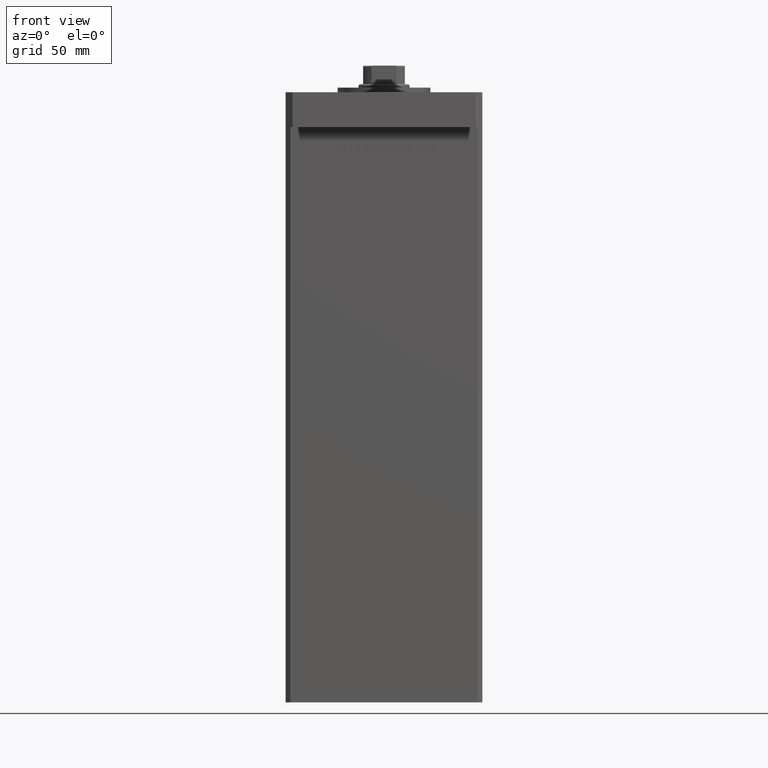
[diagram: clean part render]
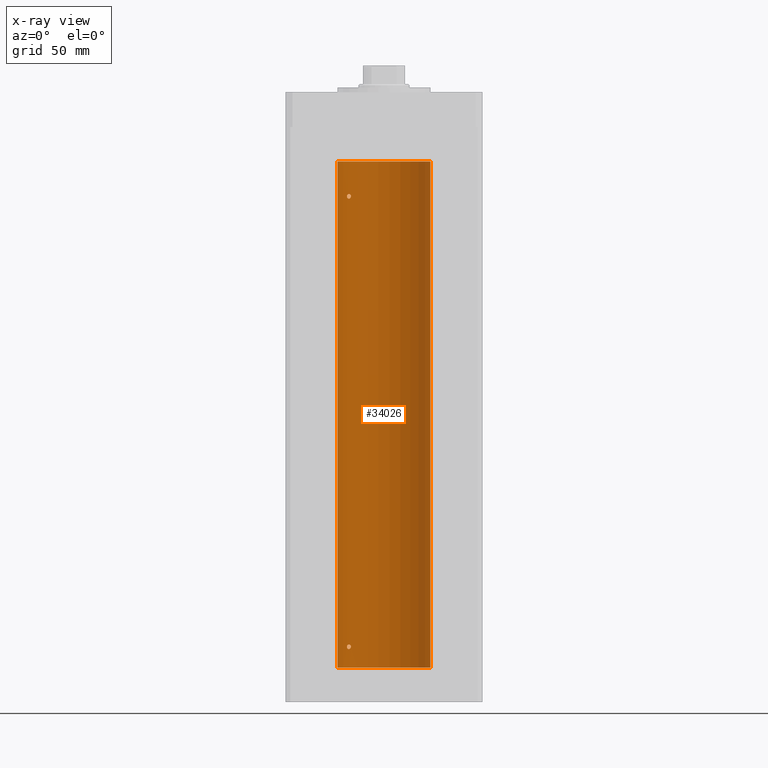
[diagram: x-ray — body ghosted, one internal face saturated and labeled with its STEP entity id]
A machine part, front view, then the same camera in x-ray: the body is ghosted and one INTERNAL B-rep face — a face not visible from any outside direction — is saturated and labeled: STEP entity #34026.
In plain terms, the highlighted cylindrical surface (partial cylindrical patch) has radius 20 mm, axis along (-0, -0, -1).
Its self-contained STEP definition (entity closure, byte-faithful):
#164 = CARTESIAN_POINT ( 'NONE',  ( -15.99999999999999645, 12.00000000000000533, 9.000000000000014211 ) ) ;
#1942 = CARTESIAN_POINT ( 'NONE',  ( -14.40763032799402055, 13.87162499441319063, 203.9952174752552878 ) ) ;
#2778 = CARTESIAN_POINT ( 'NONE',  ( -14.51590294503182932, 13.75881262167379404, 202.8367812074223480 ) ) ;
#3043 = CARTESIAN_POINT ( 'NONE',  ( -14.78531327857342959, 13.46907986586309924, 202.6090990069115207 ) ) ;
#3106 = EDGE_CURVE ( 'NONE', #18016, #44251, #45439, .T. ) ;
#3334 = ORIENTED_EDGE ( 'NONE', *, *, #38537, .F. ) ;
#3426 = CARTESIAN_POINT ( 'NONE',  ( -16.00000000000000355, 12.00000000000000888, 9.154240719993506303 ) ) ;
#3431 = B_SPLINE_CURVE_WITH_KNOTS ( 'NONE', 3,
 ( #22552, #10631, #39087, #1942, #18489, #27152, #35036, #30166, #36614, #15758, #31765, #28478, #52863, #6828, #52346, #3550, #40682, #44492, #7358, #48817 ),
 .UNSPECIFIED., .F., .F.,
 ( 4, 2, 2, 2, 2, 2, 2, 2, 2, 4 ),
 ( 0.003644921977557289642, 0.004100339128177169119, 0.004328047703487108641, 0.004555756278797049030, 0.005011173429416889910, 0.005466590580036730790, 0.005922007730656571670, 0.006377424881276412549, 0.006832842031896252562, 0.007288259182516093442 ),
 .UNSPECIFIED. ) ;
#3550 = CARTESIAN_POINT ( 'NONE',  ( -15.80861854366320074, 12.25167421322532668, 204.1760529919016847 ) ) ;
#3591 = CARTESIAN_POINT ( 'NONE',  ( -14.69070843596623099, 13.57200975233014972, 8.170264738076793876 ) ) ;
#3866 = DIRECTION ( 'NONE',  ( -0.000000000000000000, 0.000000000000000000, 1.000000000000000000 ) ) ;
#4324 = CARTESIAN_POINT ( 'NONE',  ( -14.28285685708537756, 14.00000000000032863, 8.999999999999864997 ) ) ;
#5059 = ORIENTED_EDGE ( 'NONE', *, *, #3106, .F. ) ;
#6814 = DIRECTION ( 'NONE',  ( -0.000000000000000000, 0.000000000000000000, 1.000000000000000000 ) ) ;
#6828 = CARTESIAN_POINT ( 'NONE',  ( -15.56338254739985949, 12.56194079578775025, 204.4068150496692624 ) ) ;
#7128 = CARTESIAN_POINT ( 'NONE',  ( -16.00000000000000355, 12.00000000000000711, 8.845692188641420373 ) ) ;
#7358 = CARTESIAN_POINT ( 'NONE',  ( -15.99999999999999289, 12.00000000000001243, 203.6542407199934814 ) ) ;
#7372 = FACE_BOUND ( 'NONE', #48345, .T. ) ;
#8215 = AXIS2_PLACEMENT_3D ( 'NONE', #52062, #6814, #15477 ) ;
#8571 = CARTESIAN_POINT ( 'NONE',  ( -15.37869370082498044, 12.78737709343839057, 9.984378433483328763 ) ) ;
#10631 = CARTESIAN_POINT ( 'NONE',  ( -14.28285685708573105, 14.00000000000002665, 203.6525126096658482 ) ) ;
#10925 = CARTESIAN_POINT ( 'NONE',  ( -14.28285685708538111, 14.00000000000032685, 203.4999999999998863 ) ) ;
#11198 = CARTESIAN_POINT ( 'NONE',  ( -15.99999999999999645, 12.00000000000000533, 9.000000000000014211 ) ) ;
#11209 = CARTESIAN_POINT ( 'NONE',  ( -15.99999999999999645, 12.00000000000000533, 9.000000000000014211 ) ) ;
#11648 = ORIENTED_EDGE ( 'NONE', *, *, #16266, .T. ) ;
#11966 = CARTESIAN_POINT ( 'NONE',  ( -15.08054978948643488, 13.13774395934156658, 202.5027765441529937 ) ) ;
#12085 = CARTESIAN_POINT ( 'NONE',  ( -15.08229700616151270, 13.13572892147766247, 9.997430752714793201 ) ) ;
#12256 = EDGE_CURVE ( 'NONE', #40490, #44108, #23865, .T. ) ;
#12628 = CARTESIAN_POINT ( 'NONE',  ( -14.78630942130979342, 13.46798002156744545, 9.891415279583991804 ) ) ;
#12881 = ORIENTED_EDGE ( 'NONE', *, *, #19067, .F. ) ;
#13127 = VERTEX_POINT ( 'NONE', #44018 ) ;
#15252 = CARTESIAN_POINT ( 'NONE',  ( -14.43642497935765334, 13.84184969151371547, 202.9420533359229069 ) ) ;
#15295 = CARTESIAN_POINT ( 'NONE',  ( 20.00000000000000000, 2.449293598294706513E-15, 0.000000000000000000 ) ) ;
#15477 = DIRECTION ( 'NONE',  ( 1.000000000000000000, 0.000000000000000000, 0.000000000000000000 ) ) ;
#15508 = DIRECTION ( 'NONE',  ( -0.000000000000000000, -0.000000000000000000, -1.000000000000000000 ) ) ;
#15513 = CARTESIAN_POINT ( 'NONE',  ( -15.99999999999999645, 12.00000000000000711, 203.5000000000000000 ) ) ;
#15758 = CARTESIAN_POINT ( 'NONE',  ( -14.98188199575990964, 13.25008090651448178, 204.4752364028577745 ) ) ;
#15798 = CARTESIAN_POINT ( 'NONE',  ( -14.28285685708537756, 14.00000000000032863, 8.999999999999864997 ) ) ;
#16169 = CARTESIAN_POINT ( 'NONE',  ( -14.51882058315760027, 13.75524947942078313, 9.658734659218616514 ) ) ;
#16266 = EDGE_CURVE ( 'NONE', #26154, #44108, #29427, .T. ) ;
#16600 = CARTESIAN_POINT ( 'NONE',  ( -14.51590294503183820, 13.75881262167379049, 8.336781207422378159 ) ) ;
#16974 = CARTESIAN_POINT ( 'NONE',  ( -15.28000793038418870, 12.90520882930645108, 10.00215022853124225 ) ) ;
#18016 = VERTEX_POINT ( 'NONE', #11209 ) ;
#18315 = AXIS2_PLACEMENT_3D ( 'NONE', #48307, #15508, #31780 ) ;
#18489 = CARTESIAN_POINT ( 'NONE',  ( -14.44276720520014656, 13.83508275448404312, 204.0540486626503025 ) ) ;
#19067 = EDGE_CURVE ( 'NONE', #13127, #49573, #3431, .T. ) ;
#19310 = CARTESIAN_POINT ( 'NONE',  ( -15.99999999999999289, 12.00000000000000888, 203.3456921886413795 ) ) ;
#19598 = CARTESIAN_POINT ( 'NONE',  ( -15.97265980134107721, 12.03662641108511977, 8.695337314863905931 ) ) ;
#20654 = CARTESIAN_POINT ( 'NONE',  ( -14.78531327857342781, 13.46907986586309569, 8.109099006911467455 ) ) ;
#20851 = CARTESIAN_POINT ( 'NONE',  ( -15.99999999999999645, 12.00000000000000711, 203.5000000000000000 ) ) ;
#21286 = DIRECTION ( 'NONE',  ( -0.000000000000000000, -0.000000000000000000, -1.000000000000000000 ) ) ;
#21460 = EDGE_CURVE ( 'NONE', #25222, #40490, #48884, .T. ) ;
#22274 = VECTOR ( 'NONE', #41027, 1000.000000000000000 ) ;
#22552 = CARTESIAN_POINT ( 'NONE',  ( -14.28285685708538111, 14.00000000000032685, 203.4999999999998863 ) ) ;
#23865 = CIRCLE ( 'NONE', #35139, 20.00000000000000000 ) ;
#24026 = CARTESIAN_POINT ( 'NONE',  ( -15.87665094074984928, 12.16298652314402950, 9.566050066014028630 ) ) ;
#24428 = CYLINDRICAL_SURFACE ( 'NONE', #18315, 20.00000000000000000 ) ;
#24727 = CARTESIAN_POINT ( 'NONE',  ( -15.80909732170550441, 12.25106527276995649, 8.324451780901419795 ) ) ;
#24736 = CARTESIAN_POINT ( 'NONE',  ( 0.000000000000000000, 0.000000000000000000, 0.000000000000000000 ) ) ;
#24995 = CARTESIAN_POINT ( 'NONE',  ( -15.87710824431566614, 12.16238752415382152, 8.434921807322291798 ) ) ;
#25222 = VERTEX_POINT ( 'NONE', #39222 ) ;
#25901 = B_SPLINE_CURVE_WITH_KNOTS ( 'NONE', 3,
 ( #15513, #19310, #27969, #48046, #44515, #36369, #52628, #11966, #35854, #3043, #52368, #2778, #15252, #32043, #44248, #10925 ),
 .UNSPECIFIED., .F., .F.,
 ( 4, 2, 2, 2, 2, 2, 2, 4 ),
 ( 0.000000000000000000, 0.0004556152471946448338, 0.0009112304943892896676, 0.001822460988778623354, 0.002278076235973289926, 0.002733691483167956498, 0.003189306730362623070, 0.003644921977557289642 ),
 .UNSPECIFIED. ) ;
#26154 = VERTEX_POINT ( 'NONE', #50996 ) ;
#27152 = CARTESIAN_POINT ( 'NONE',  ( -14.51882058315760204, 13.75524947942077958, 204.1587346592185952 ) ) ;
#27969 = CARTESIAN_POINT ( 'NONE',  ( -15.97265980134107721, 12.03662641108512332, 203.1953373148639344 ) ) ;
#28220 = EDGE_LOOP ( 'NONE', ( #43123, #36098, #11648, #52541 ) ) ;
#28478 = CARTESIAN_POINT ( 'NONE',  ( -15.28000793038419758, 12.90520882930644042, 204.5021502285312067 ) ) ;
#28517 = CARTESIAN_POINT ( 'NONE',  ( -15.37869471769012897, 12.79018928545119671, 7.995165913711818284 ) ) ;
#28616 = CARTESIAN_POINT ( 'NONE',  ( -15.56338254739985594, 12.56194079578775202, 9.906815049669297935 ) ) ;
#28857 = EDGE_LOOP ( 'NONE', ( #45675, #12881 ) ) ;
#28983 = EDGE_CURVE ( 'NONE', #49573, #13127, #25901, .T. ) ;
#29167 = CARTESIAN_POINT ( 'NONE',  ( -14.98188199575990254, 13.25008090651449244, 9.975236402857765583 ) ) ;
#29427 = LINE ( 'NONE', #30233, #36091 ) ;
#29766 = B_SPLINE_CURVE_WITH_KNOTS ( 'NONE', 3,
 ( #33236, #53284, #49751, #37029, #37288, #16169, #32695, #49212, #12628, #29167, #12085, #16974, #8571, #28616, #45161, #53555, #24026, #41364, #3426, #164 ),
 .UNSPECIFIED., .F., .F.,
 ( 4, 2, 2, 2, 2, 2, 2, 2, 2, 4 ),
 ( 0.003644921977557299617, 0.004100339128177156109, 0.004328047703487083488, 0.004555756278797011734, 0.005011173429416868226, 0.005466590580036723851, 0.005922007730656580343, 0.006377424881276436835, 0.006832842031896293328, 0.007288259182516148953 ),
 .UNSPECIFIED. ) ;
#29846 = CIRCLE ( 'NONE', #8215, 20.00000000000000000 ) ;
#30166 = CARTESIAN_POINT ( 'NONE',  ( -14.69171503997127104, 13.57092520311232420, 204.3305470397793897 ) ) ;
#30233 = CARTESIAN_POINT ( 'NONE',  ( -20.00000000000000000, 0.000000000000000000, 218.5000000000000000 ) ) ;
#31765 = CARTESIAN_POINT ( 'NONE',  ( -15.08229700616151625, 13.13572892147764826, 204.4974307527148483 ) ) ;
#31780 = DIRECTION ( 'NONE',  ( -1.000000000000000000, 0.000000000000000000, 0.000000000000000000 ) ) ;
#32043 = CARTESIAN_POINT ( 'NONE',  ( -14.31871019372461085, 13.96358505023716212, 203.1974785395778724 ) ) ;
#32695 = CARTESIAN_POINT ( 'NONE',  ( -14.56006338825494772, 13.71162570780885126, 9.705357955363325573 ) ) ;
#33236 = CARTESIAN_POINT ( 'NONE',  ( -14.28285685708537756, 14.00000000000032863, 8.999999999999864997 ) ) ;
#33404 = CARTESIAN_POINT ( 'NONE',  ( -15.57359523075763086, 12.55100654799543136, 8.068614275410766368 ) ) ;
#33936 = CARTESIAN_POINT ( 'NONE',  ( -20.00000000000000000, 0.000000000000000000, 0.000000000000000000 ) ) ;
#34026 = ADVANCED_FACE ( 'NONE', ( #43978, #7372, #44510 ), #24428, .F. ) ;
#35036 = CARTESIAN_POINT ( 'NONE',  ( -14.56006338825495483, 13.71162570780885481, 204.2053579553633540 ) ) ;
#35139 = AXIS2_PLACEMENT_3D ( 'NONE', #24736, #3866, #45343 ) ;
#35854 = CARTESIAN_POINT ( 'NONE',  ( -14.98166541227928761, 13.25033217142396325, 202.5247696149142769 ) ) ;
#36091 = VECTOR ( 'NONE', #21286, 1000.000000000000000 ) ;
#36098 = ORIENTED_EDGE ( 'NONE', *, *, #46492, .T. ) ;
#36369 = CARTESIAN_POINT ( 'NONE',  ( -15.57359523075762908, 12.55100654799543847, 202.5686142754107664 ) ) ;
#36614 = CARTESIAN_POINT ( 'NONE',  ( -14.78630942130979697, 13.46798002156743479, 204.3914152795839811 ) ) ;
#37029 = CARTESIAN_POINT ( 'NONE',  ( -14.40763032799400989, 13.87162499441319952, 9.495217475255255835 ) ) ;
#37288 = CARTESIAN_POINT ( 'NONE',  ( -14.44276720520014123, 13.83508275448403957, 9.554048662650291845 ) ) ;
#37458 = CARTESIAN_POINT ( 'NONE',  ( -14.31871019372461795, 13.96358505023715679, 8.697478539577902623 ) ) ;
#38537 = EDGE_CURVE ( 'NONE', #44251, #18016, #29766, .T. ) ;
#39087 = CARTESIAN_POINT ( 'NONE',  ( -14.31936354392035149, 13.96291496472315785, 203.8044284570273135 ) ) ;
#39222 = CARTESIAN_POINT ( 'NONE',  ( 20.00000000000000000, 2.449293598294706513E-15, 218.5000000000000000 ) ) ;
#40490 = VERTEX_POINT ( 'NONE', #15295 ) ;
#40682 = CARTESIAN_POINT ( 'NONE',  ( -15.87665094074984573, 12.16298652314402595, 204.0660500660140428 ) ) ;
#40751 = CARTESIAN_POINT ( 'NONE',  ( 20.00000000000000000, 2.449293598294706513E-15, 218.5000000000000000 ) ) ;
#41027 = DIRECTION ( 'NONE',  ( -0.000000000000000000, -0.000000000000000000, -1.000000000000000000 ) ) ;
#41364 = CARTESIAN_POINT ( 'NONE',  ( -15.97258576326346713, 12.03672672663914689, 9.305137409213740440 ) ) ;
#43123 = ORIENTED_EDGE ( 'NONE', *, *, #21460, .F. ) ;
#43978 = FACE_OUTER_BOUND ( 'NONE', #28220, .T. ) ;
#44018 = CARTESIAN_POINT ( 'NONE',  ( -14.28285685708538111, 14.00000000000032685, 203.4999999999998863 ) ) ;
#44108 = VERTEX_POINT ( 'NONE', #33936 ) ;
#44248 = CARTESIAN_POINT ( 'NONE',  ( -14.28285685708575770, 13.99999999999999822, 203.3474210506593636 ) ) ;
#44251 = VERTEX_POINT ( 'NONE', #4324 ) ;
#44492 = CARTESIAN_POINT ( 'NONE',  ( -15.97258576326347068, 12.03672672663914867, 203.8051374092137848 ) ) ;
#44510 = FACE_BOUND ( 'NONE', #28857, .T. ) ;
#44515 = CARTESIAN_POINT ( 'NONE',  ( -15.80909732170550441, 12.25106527276996182, 202.8244517809014269 ) ) ;
#45059 = CARTESIAN_POINT ( 'NONE',  ( -14.28285685708575414, 14.00000000000000000, 8.847421050659361796 ) ) ;
#45161 = CARTESIAN_POINT ( 'NONE',  ( -15.65267653428113093, 12.45028749062556450, 9.845491151963445375 ) ) ;
#45334 = CARTESIAN_POINT ( 'NONE',  ( -14.43642497935765512, 13.84184969151371547, 8.442053335922938828 ) ) ;
#45343 = DIRECTION ( 'NONE',  ( 1.000000000000000000, 0.000000000000000000, 0.000000000000000000 ) ) ;
#45439 = B_SPLINE_CURVE_WITH_KNOTS ( 'NONE', 3,
 ( #11198, #7128, #19598, #24995, #24727, #33404, #28517, #52906, #53181, #20654, #3591, #16600, #45334, #37458, #45059, #15798 ),
 .UNSPECIFIED., .F., .F.,
 ( 4, 2, 2, 2, 2, 2, 2, 4 ),
 ( 1.734723475976807094E-18, 0.0004556152471946670057, 0.0009112304943893322767, 0.001822460988778654796, 0.002278076235973315947, 0.002733691483167977315, 0.003189306730362638249, 0.003644921977557299617 ),
 .UNSPECIFIED. ) ;
#45675 = ORIENTED_EDGE ( 'NONE', *, *, #28983, .F. ) ;
#46492 = EDGE_CURVE ( 'NONE', #25222, #26154, #29846, .T. ) ;
#48046 = CARTESIAN_POINT ( 'NONE',  ( -15.87710824431565548, 12.16238752415382507, 202.9349218073222403 ) ) ;
#48307 = CARTESIAN_POINT ( 'NONE',  ( 0.000000000000000000, 0.000000000000000000, 218.5000000000000000 ) ) ;
#48345 = EDGE_LOOP ( 'NONE', ( #5059, #3334 ) ) ;
#48817 = CARTESIAN_POINT ( 'NONE',  ( -15.99999999999999645, 12.00000000000000711, 203.5000000000000000 ) ) ;
#48884 = LINE ( 'NONE', #40751, #22274 ) ;
#49212 = CARTESIAN_POINT ( 'NONE',  ( -14.69171503997126571, 13.57092520311232420, 9.830547039779318652 ) ) ;
#49573 = VERTEX_POINT ( 'NONE', #20851 ) ;
#49751 = CARTESIAN_POINT ( 'NONE',  ( -14.31936354392034616, 13.96291496472316496, 9.304428457027336563 ) ) ;
#50996 = CARTESIAN_POINT ( 'NONE',  ( -20.00000000000000000, 0.000000000000000000, 218.5000000000000000 ) ) ;
#52062 = CARTESIAN_POINT ( 'NONE',  ( 0.000000000000000000, 0.000000000000000000, 218.5000000000000000 ) ) ;
#52346 = CARTESIAN_POINT ( 'NONE',  ( -15.65267653428112027, 12.45028749062556983, 204.3454911519634720 ) ) ;
#52368 = CARTESIAN_POINT ( 'NONE',  ( -14.69070843596622922, 13.57200975233015505, 202.6702647380768383 ) ) ;
#52541 = ORIENTED_EDGE ( 'NONE', *, *, #12256, .F. ) ;
#52628 = CARTESIAN_POINT ( 'NONE',  ( -15.37869471769012542, 12.79018928545120204, 202.4951659137118725 ) ) ;
#52863 = CARTESIAN_POINT ( 'NONE',  ( -15.37869370082499110, 12.78737709343838524, 204.4843784334833572 ) ) ;
#52906 = CARTESIAN_POINT ( 'NONE',  ( -15.08054978948644198, 13.13774395934156836, 8.002776544153013205 ) ) ;
#53181 = CARTESIAN_POINT ( 'NONE',  ( -14.98166541227929116, 13.25033217142396325, 8.024769614914287530 ) ) ;
#53284 = CARTESIAN_POINT ( 'NONE',  ( -14.28285685708573460, 14.00000000000003020, 9.152512609665855337 ) ) ;
#53555 = CARTESIAN_POINT ( 'NONE',  ( -15.80861854366319719, 12.25167421322532491, 9.676052991901718414 ) ) ;